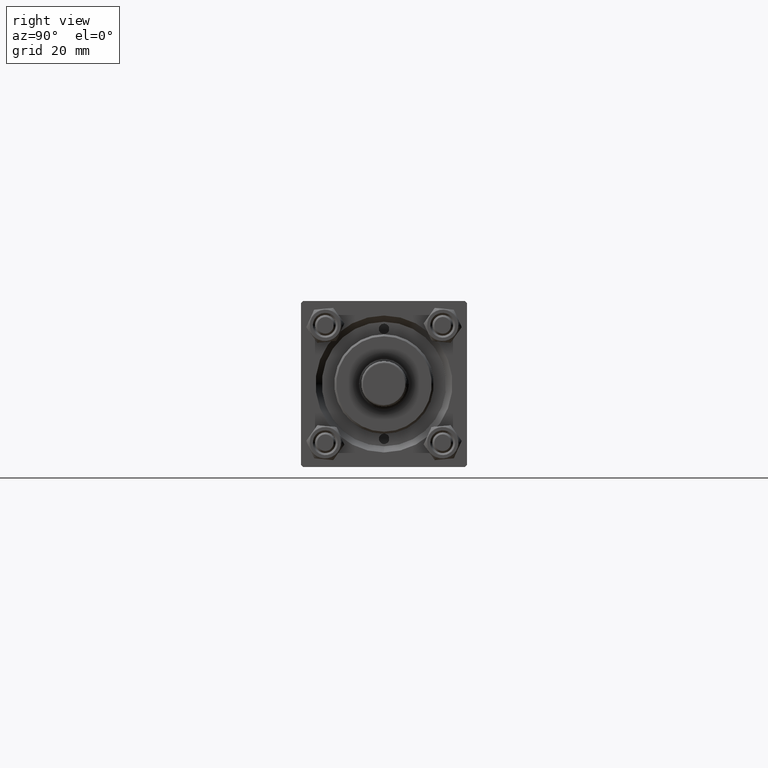
[diagram: clean part render]
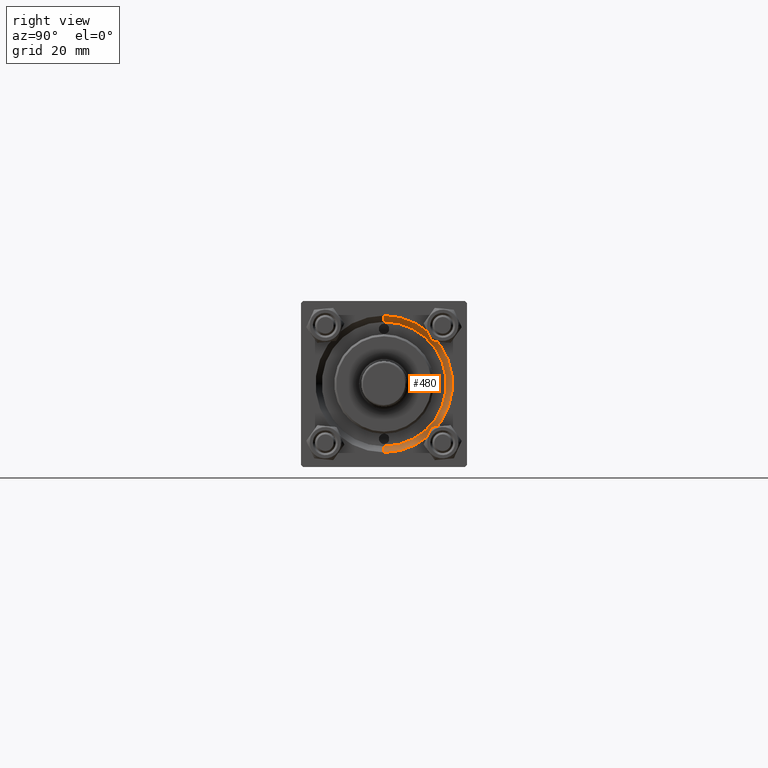
[diagram: same view with one face highlighted and labeled with its STEP entity id]
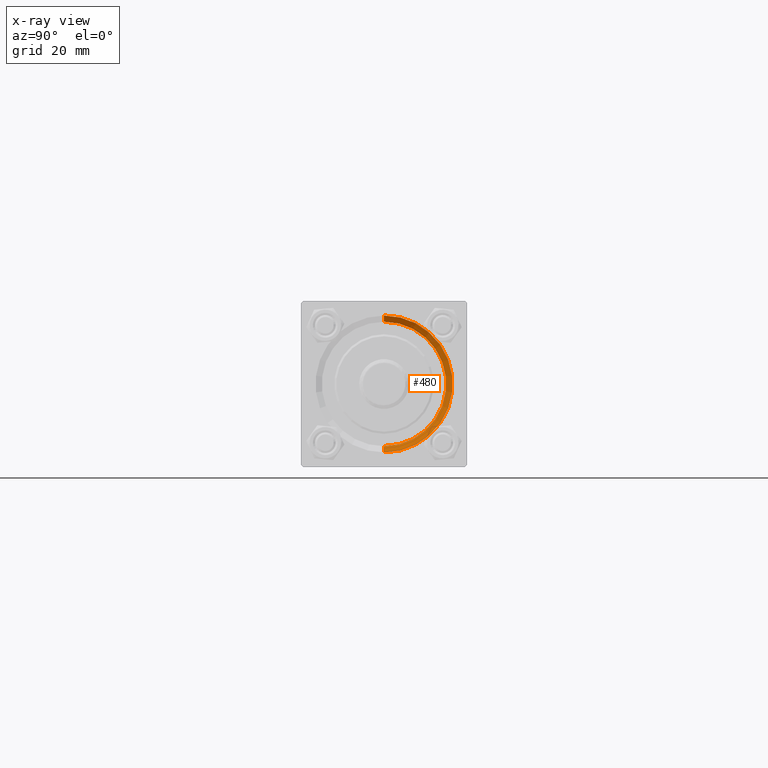
[diagram: x-ray of the same camera — body ghosted, the highlighted face saturated]
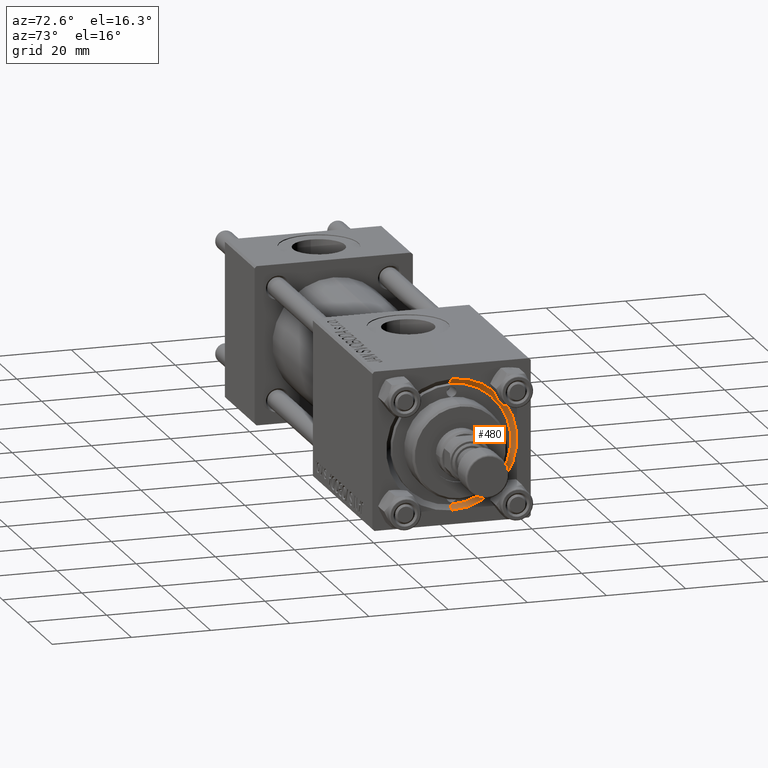
[diagram: same view with one face highlighted and labeled with its STEP entity id]
A machine part, right view. The second image highlights one B-rep face of the part: STEP entity #480.
The next image is the same camera in x-ray: the body ghosted, the highlighted face saturated — about 0% of this face is hidden behind the body in this view.
A second angle (auxiliary view) of the same face is appended — the face is thin or edge-on in the first view.
In plain terms, the highlighted conical surface has half-angle 45 deg.
Its self-contained STEP definition (entity closure, byte-faithful):
#480 = ADVANCED_FACE ( 'NONE', ( #22575 ), #50166, .F. ) ;
#3354 = EDGE_LOOP ( 'NONE', ( #44941, #5214, #32364, #12144 ) ) ;
#3963 = CIRCLE ( 'NONE', #46263, 15.00000000000000000 ) ;
#4471 = DIRECTION ( 'NONE',  ( 1.000000000000000000, 0.000000000000000000, 0.000000000000000000 ) ) ;
#5118 = CARTESIAN_POINT ( 'NONE',  ( 117.5000000000000000, 0.000000000000000000, -15.00000000000000000 ) ) ;
#5214 = ORIENTED_EDGE ( 'NONE', *, *, #9131, .F. ) ;
#5384 = VECTOR ( 'NONE', #25512, 1000.000000000000114 ) ;
#6566 = CARTESIAN_POINT ( 'NONE',  ( 117.5000000000000000, 0.000000000000000000, -15.00000000000000000 ) ) ;
#8122 = CARTESIAN_POINT ( 'NONE',  ( 117.5000000000000000, 1.836970198721029589E-15, 15.00000000000000000 ) ) ;
#8266 = CARTESIAN_POINT ( 'NONE',  ( 119.0000000000000142, 0.000000000000000000, 0.000000000000000000 ) ) ;
#8509 = DIRECTION ( 'NONE',  ( 0.000000000000000000, 0.000000000000000000, 1.000000000000000000 ) ) ;
#8660 = AXIS2_PLACEMENT_3D ( 'NONE', #10860, #15188, #38374 ) ;
#9131 = EDGE_CURVE ( 'NONE', #34872, #46495, #3963, .T. ) ;
#9961 = LINE ( 'NONE', #5118, #5384 ) ;
#10860 = CARTESIAN_POINT ( 'NONE',  ( 117.5000000000000000, 0.000000000000000000, 0.000000000000000000 ) ) ;
#12144 = ORIENTED_EDGE ( 'NONE', *, *, #25142, .F. ) ;
#13849 = EDGE_CURVE ( 'NONE', #46495, #21516, #38199, .T. ) ;
#15188 = DIRECTION ( 'NONE',  ( 1.000000000000000000, 0.000000000000000000, 0.000000000000000000 ) ) ;
#16908 = DIRECTION ( 'NONE',  ( -1.000000000000000000, -0.000000000000000000, -0.000000000000000000 ) ) ;
#21021 = DIRECTION ( 'NONE',  ( 0.000000000000000000, 0.000000000000000000, 1.000000000000000000 ) ) ;
#21516 = VERTEX_POINT ( 'NONE', #44264 ) ;
#22434 = AXIS2_PLACEMENT_3D ( 'NONE', #8266, #16908, #8509 ) ;
#22575 = FACE_OUTER_BOUND ( 'NONE', #3354, .T. ) ;
#23674 = DIRECTION ( 'NONE',  ( 0.7071067811865474617, 8.659560562354932858E-17, 0.7071067811865474617 ) ) ;
#25142 = EDGE_CURVE ( 'NONE', #21516, #27712, #39529, .T. ) ;
#25512 = DIRECTION ( 'NONE',  ( 0.7071067811865474617, 0.000000000000000000, -0.7071067811865474617 ) ) ;
#27712 = VERTEX_POINT ( 'NONE', #29311 ) ;
#27723 = EDGE_CURVE ( 'NONE', #34872, #27712, #9961, .T. ) ;
#29311 = CARTESIAN_POINT ( 'NONE',  ( 119.0000000000000142, 0.000000000000000000, -16.50000000000001421 ) ) ;
#30683 = CARTESIAN_POINT ( 'NONE',  ( 117.5000000000000000, 1.836970198721029589E-15, 15.00000000000000000 ) ) ;
#32364 = ORIENTED_EDGE ( 'NONE', *, *, #27723, .T. ) ;
#32471 = CARTESIAN_POINT ( 'NONE',  ( 117.5000000000000000, 0.000000000000000000, 0.000000000000000000 ) ) ;
#34872 = VERTEX_POINT ( 'NONE', #6566 ) ;
#37448 = VECTOR ( 'NONE', #23674, 1000.000000000000114 ) ;
#38199 = LINE ( 'NONE', #8122, #37448 ) ;
#38374 = DIRECTION ( 'NONE',  ( 0.000000000000000000, 0.000000000000000000, -1.000000000000000000 ) ) ;
#39529 = CIRCLE ( 'NONE', #22434, 16.50000000000001421 ) ;
#44264 = CARTESIAN_POINT ( 'NONE',  ( 119.0000000000000142, 2.020667218593134678E-15, 16.50000000000001421 ) ) ;
#44941 = ORIENTED_EDGE ( 'NONE', *, *, #13849, .F. ) ;
#46263 = AXIS2_PLACEMENT_3D ( 'NONE', #32471, #4471, #21021 ) ;
#46495 = VERTEX_POINT ( 'NONE', #30683 ) ;
#50166 = CONICAL_SURFACE ( 'NONE', #8660, 15.00000000000000000, 0.7853981633974482790 ) ;